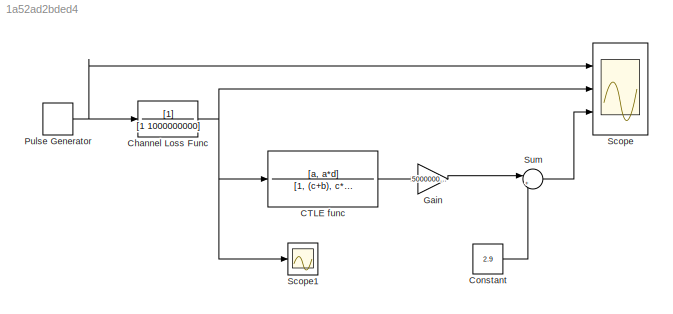
MODEL slx_1a52ad2bded4
KIND model
CONFIG AbsTol = auto
CONFIG FixedStep = auto
CONFIG MaxStep = auto
CONFIG MinStep = auto
CONFIG RelTol = 1e-3
CONFIG SampleTimeConstraint = Unconstrained
CONFIG Solver = ode45
CONFIG SolverMode = Auto
CONFIG SolverName = ode45
CONFIG StartTime = 0.0
CONFIG StopTime = 0.0000001
BLOCK [TransferFcn] CTLE func
  Denominator = [1, (c+b), c*b]
  Numerator = [a, a*d]
BLOCK [TransferFcn] Channel Loss Func
  Denominator = [1 1000000000]
BLOCK [Constant] Constant
  Value = 2.9
BLOCK [Gain] Gain
  Gain = 5000000000
  OutDataTypeStr = Inherit: Inherit via internal rule
  ParamDataTypeStr = Inherit: Inherit via internal rule
  SaturateOnIntegerOverflow = off
BLOCK [DiscretePulseGenerator] Pulse Generator
  Period = 0.0000000001
  Ports = [0, 1]
  PulseType = Time based
  PulseWidth = 50
BLOCK [Scope] Scope
  Floating = off
  NumInputPorts = 3
  Ports = [3]
  YMax = 550000~5~5
  YMin = 0~-5~-5
  ZoomMode = xonly
BLOCK [Scope] Scope1
  Floating = off
  NumInputPorts = 1
  Ports = [1]
  SaveName = ScopeData1
BLOCK [Sum] Sum
  IconShape = round
  InputSameDT = off
  Inputs = |+-
  OutDataTypeStr = Inherit: Inherit via internal rule
  Ports = [2, 1]
  SaturateOnIntegerOverflow = off
LINE CTLE func:1 -> Gain:1
NET Channel Loss Func:1 -> CTLE func:1, Scope1:1, Scope:2
LINE Constant:1 -> Sum:2
LINE Gain:1 -> Sum:1
NET Pulse Generator:1 -> Channel Loss Func:1, Scope:1
LINE Sum:1 -> Scope:3
note: NET lines group one-source signal fan-out (src -> all destinations, sorted); 1:1 wires keep LINE
